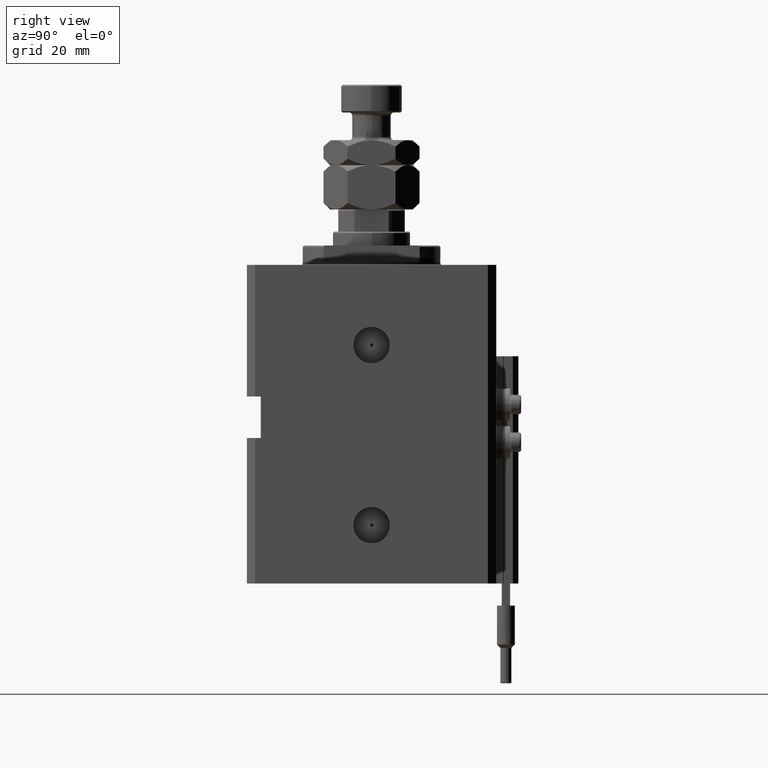
[diagram: clean part render]
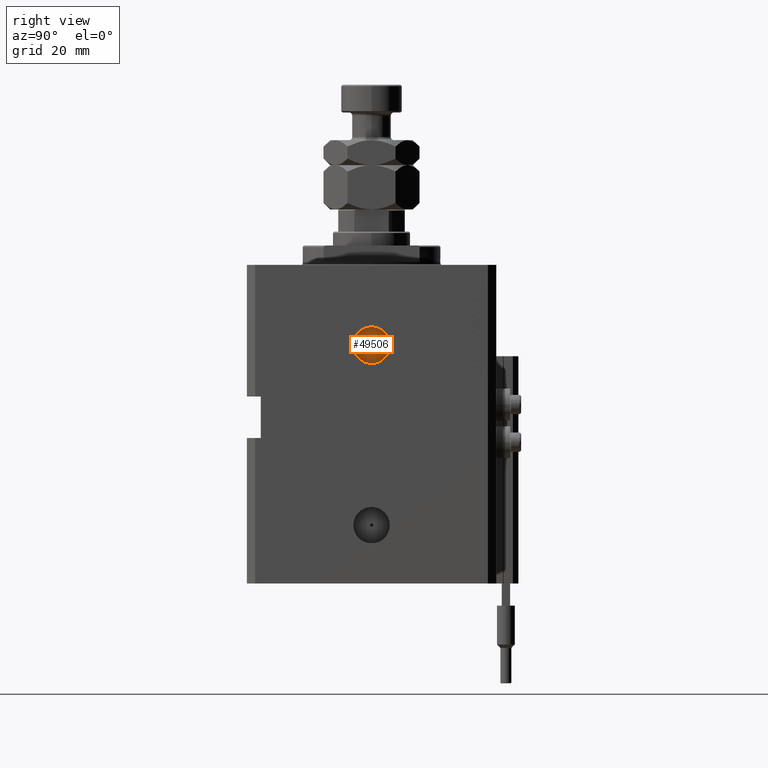
[diagram: same view with one face highlighted and labeled with its STEP entity id]
A machine part, right view. The second image highlights one B-rep face of the part: STEP entity #49506.
In plain terms, the highlighted planar face has unit normal (1, -0, 0).
Its self-contained STEP definition (entity closure, byte-faithful):
#1108 = EDGE_CURVE ( 'NONE', #17132, #51705, #44296, .T. ) ;
#2636 = CIRCLE ( 'NONE', #8523, 0.6249999999999984457 ) ;
#2862 = AXIS2_PLACEMENT_3D ( 'NONE', #39878, #15351, #47985 ) ;
#3944 = CARTESIAN_POINT ( 'NONE',  ( 44.40000000000028280, -1.956806206692491141E-13, -29.00000000000000000 ) ) ;
#3991 = ORIENTED_EDGE ( 'NONE', *, *, #13421, .F. ) ;
#5921 = FACE_BOUND ( 'NONE', #34170, .T. ) ;
#6698 = CARTESIAN_POINT ( 'NONE',  ( 44.40000000000028280, -1.956806206692491394E-13, -29.00000000000000000 ) ) ;
#8523 = AXIS2_PLACEMENT_3D ( 'NONE', #45224, #9446, #21450 ) ;
#8714 = CARTESIAN_POINT ( 'NONE',  ( 44.40000000000036806, 6.579999999999802007, -29.00000000000000000 ) ) ;
#9409 = ORIENTED_EDGE ( 'NONE', *, *, #1108, .F. ) ;
#9446 = DIRECTION ( 'NONE',  ( 1.000000000000000000, -1.334402673828349134E-14, 0.000000000000000000 ) ) ;
#10075 = EDGE_CURVE ( 'NONE', #10551, #24111, #10426, .T. ) ;
#10076 = DIRECTION ( 'NONE',  ( 1.370906090437598597E-14, 1.000000000000000000, 0.000000000000000000 ) ) ;
#10426 = CIRCLE ( 'NONE', #2862, 6.579999999999998295 ) ;
#10551 = VERTEX_POINT ( 'NONE', #21689 ) ;
#13421 = EDGE_CURVE ( 'NONE', #51705, #17132, #2636, .T. ) ;
#15351 = DIRECTION ( 'NONE',  ( 1.000000000000000000, -1.334402673828349134E-14, 0.000000000000000000 ) ) ;
#17131 = DIRECTION ( 'NONE',  ( 1.000000000000000000, -1.334402673828349134E-14, 0.000000000000000000 ) ) ;
#17132 = VERTEX_POINT ( 'NONE', #17472 ) ;
#17472 = CARTESIAN_POINT ( 'NONE',  ( 44.40000000000027569, -0.6250000000001941780, -29.00000000000000000 ) ) ;
#18213 = DIRECTION ( 'NONE',  ( 1.334402673828349134E-14, 1.000000000000000000, 0.000000000000000000 ) ) ;
#18417 = AXIS2_PLACEMENT_3D ( 'NONE', #3944, #39991, #24827 ) ;
#21009 = ORIENTED_EDGE ( 'NONE', *, *, #10075, .T. ) ;
#21450 = DIRECTION ( 'NONE',  ( 1.110223024625159380E-14, 1.000000000000000000, 0.000000000000000000 ) ) ;
#21689 = CARTESIAN_POINT ( 'NONE',  ( 44.40000000000019043, -6.580000000000194582, -29.00000000000000000 ) ) ;
#24111 = VERTEX_POINT ( 'NONE', #8714 ) ;
#24827 = DIRECTION ( 'NONE',  ( 1.110223024625159380E-14, 1.000000000000000000, 0.000000000000000000 ) ) ;
#26040 = FACE_OUTER_BOUND ( 'NONE', #40225, .T. ) ;
#29902 = CARTESIAN_POINT ( 'NONE',  ( 44.40000000000028280, -1.956806206692491394E-13, -29.00000000000000000 ) ) ;
#30487 = CARTESIAN_POINT ( 'NONE',  ( 44.40000000000028990, 0.6249999999998028244, -29.00000000000000000 ) ) ;
#34170 = EDGE_LOOP ( 'NONE', ( #3991, #9409 ) ) ;
#35396 = ORIENTED_EDGE ( 'NONE', *, *, #39970, .T. ) ;
#38421 = AXIS2_PLACEMENT_3D ( 'NONE', #6698, #50595, #18213 ) ;
#39878 = CARTESIAN_POINT ( 'NONE',  ( 44.40000000000028280, -1.956806206692491394E-13, -29.00000000000000000 ) ) ;
#39970 = EDGE_CURVE ( 'NONE', #24111, #10551, #48068, .T. ) ;
#39991 = DIRECTION ( 'NONE',  ( 1.000000000000000000, -1.334402673828349134E-14, 0.000000000000000000 ) ) ;
#40225 = EDGE_LOOP ( 'NONE', ( #35396, #21009 ) ) ;
#41979 = PLANE ( 'NONE',  #38421 ) ;
#44296 = CIRCLE ( 'NONE', #18417, 0.6249999999999984457 ) ;
#45224 = CARTESIAN_POINT ( 'NONE',  ( 44.40000000000028280, -1.956806206692491141E-13, -29.00000000000000000 ) ) ;
#47985 = DIRECTION ( 'NONE',  ( 1.370906090437598597E-14, 1.000000000000000000, 0.000000000000000000 ) ) ;
#48068 = CIRCLE ( 'NONE', #51428, 6.579999999999998295 ) ;
#49506 = ADVANCED_FACE ( 'NONE', ( #5921, #26040 ), #41979, .T. ) ;
#50595 = DIRECTION ( 'NONE',  ( 1.000000000000000000, -1.334402673828349134E-14, 0.000000000000000000 ) ) ;
#51428 = AXIS2_PLACEMENT_3D ( 'NONE', #29902, #17131, #10076 ) ;
#51705 = VERTEX_POINT ( 'NONE', #30487 ) ;